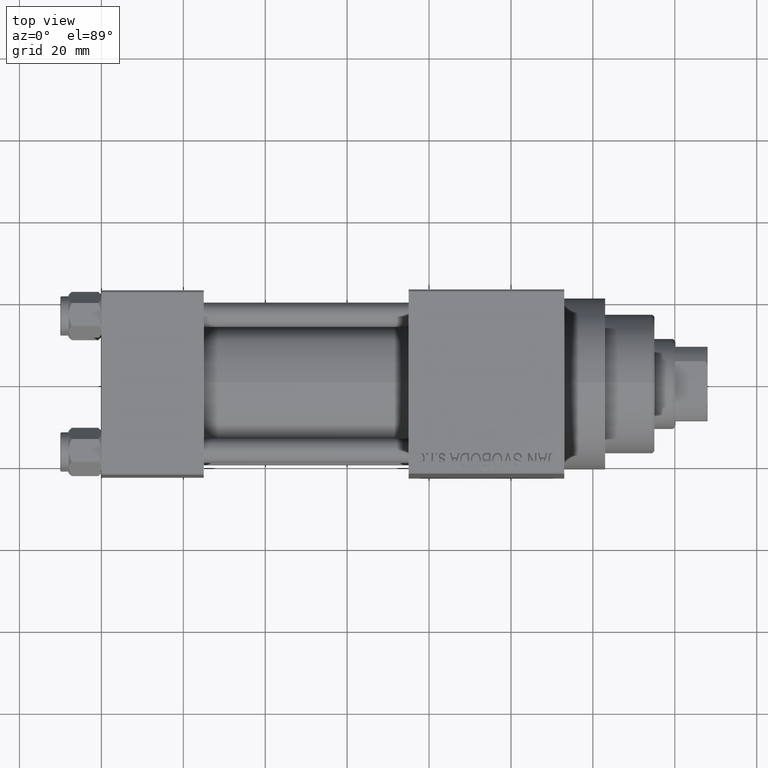
[diagram: clean part render]
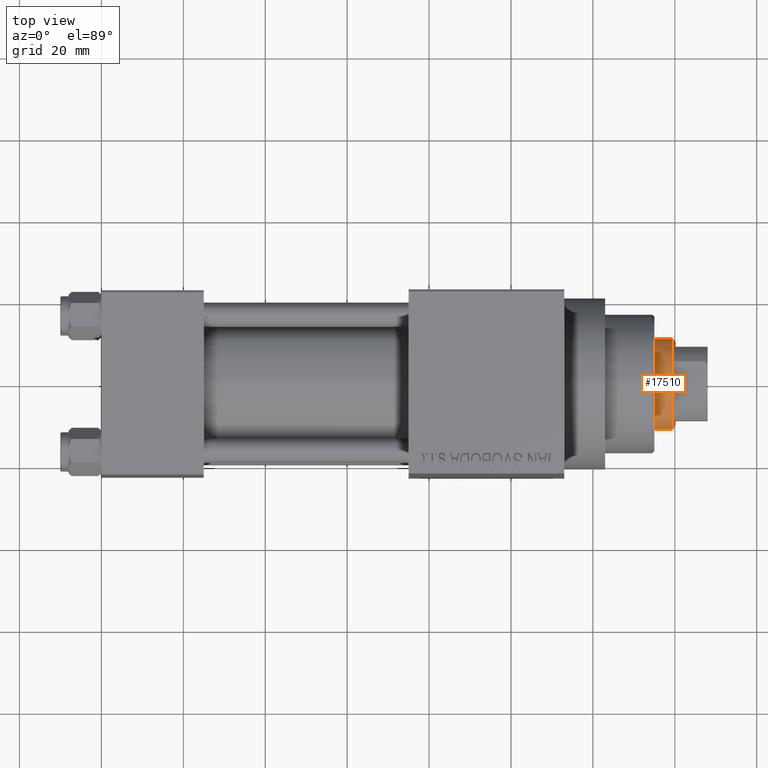
[diagram: same view with one face highlighted and labeled with its STEP entity id]
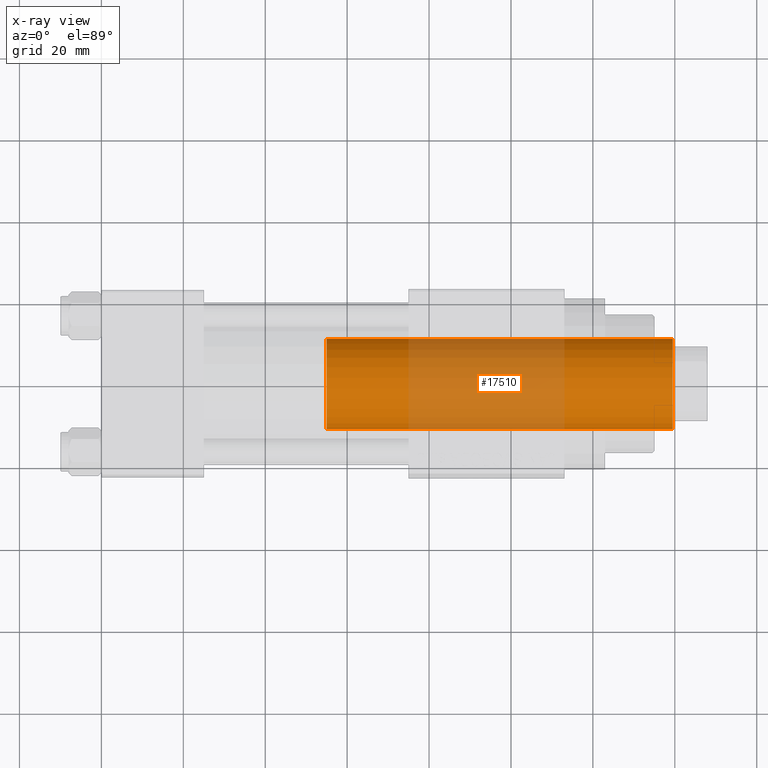
[diagram: x-ray of the same camera — body ghosted, the highlighted face saturated]
A machine part, top view. The second image highlights one B-rep face of the part: STEP entity #17510.
The next image is the same camera in x-ray: the body ghosted, the highlighted face saturated — about 45% of this face is hidden behind the body in this view.
In plain terms, the highlighted cylindrical surface (partial cylindrical patch) has radius 11 mm, axis along (-1, 0, 0).
Its self-contained STEP definition (entity closure, byte-faithful):
#221 = AXIS2_PLACEMENT_3D ( 'NONE', #34526, #13066, #21639 ) ;
#1900 = CARTESIAN_POINT ( 'NONE',  ( 0.000000000000000000, 0.000000000000000000, 114.5000000000000142 ) ) ;
#2054 = DIRECTION ( 'NONE',  ( -0.000000000000000000, -0.000000000000000000, -1.000000000000000000 ) ) ;
#3803 = EDGE_CURVE ( 'NONE', #16854, #27785, #36533, .T. ) ;
#4424 = CARTESIAN_POINT ( 'NONE',  ( 11.00000000000000000, 1.347111479062088405E-15, 30.00000000000000000 ) ) ;
#4782 = ORIENTED_EDGE ( 'NONE', *, *, #40223, .T. ) ;
#5023 = VERTEX_POINT ( 'NONE', #44740 ) ;
#5669 = LINE ( 'NONE', #23782, #30033 ) ;
#6033 = VERTEX_POINT ( 'NONE', #4424 ) ;
#7019 = CIRCLE ( 'NONE', #46620, 11.00000000000000000 ) ;
#12601 = DIRECTION ( 'NONE',  ( 1.000000000000000000, 0.000000000000000000, 0.000000000000000000 ) ) ;
#13066 = DIRECTION ( 'NONE',  ( -0.000000000000000000, -0.000000000000000000, -1.000000000000000000 ) ) ;
#14433 = EDGE_CURVE ( 'NONE', #5023, #6033, #7019, .T. ) ;
#15240 = LINE ( 'NONE', #23982, #36335 ) ;
#16854 = VERTEX_POINT ( 'NONE', #21400 ) ;
#17510 = ADVANCED_FACE ( 'NONE', ( #30949 ), #45514, .T. ) ;
#18974 = AXIS2_PLACEMENT_3D ( 'NONE', #1900, #23596, #34570 ) ;
#19017 = ORIENTED_EDGE ( 'NONE', *, *, #14433, .T. ) ;
#21400 = CARTESIAN_POINT ( 'NONE',  ( 11.00000000000000000, 1.347111479062088405E-15, 114.5000000000000142 ) ) ;
#21639 = DIRECTION ( 'NONE',  ( -1.000000000000000000, 0.000000000000000000, 0.000000000000000000 ) ) ;
#22055 = ORIENTED_EDGE ( 'NONE', *, *, #24117, .F. ) ;
#23596 = DIRECTION ( 'NONE',  ( 0.000000000000000000, 0.000000000000000000, -1.000000000000000000 ) ) ;
#23782 = CARTESIAN_POINT ( 'NONE',  ( 11.00000000000000000, 1.347111479062088405E-15, 115.0000000000000000 ) ) ;
#23982 = CARTESIAN_POINT ( 'NONE',  ( -11.00000000000000000, 0.000000000000000000, 115.0000000000000000 ) ) ;
#24117 = EDGE_CURVE ( 'NONE', #16854, #6033, #5669, .T. ) ;
#27785 = VERTEX_POINT ( 'NONE', #39040 ) ;
#29576 = EDGE_LOOP ( 'NONE', ( #22055, #34540, #4782, #19017 ) ) ;
#30033 = VECTOR ( 'NONE', #30479, 1000.000000000000000 ) ;
#30479 = DIRECTION ( 'NONE',  ( -0.000000000000000000, -0.000000000000000000, -1.000000000000000000 ) ) ;
#30715 = CARTESIAN_POINT ( 'NONE',  ( 0.000000000000000000, 0.000000000000000000, 30.00000000000000000 ) ) ;
#30949 = FACE_OUTER_BOUND ( 'NONE', #29576, .T. ) ;
#34526 = CARTESIAN_POINT ( 'NONE',  ( 0.000000000000000000, 0.000000000000000000, 115.0000000000000000 ) ) ;
#34540 = ORIENTED_EDGE ( 'NONE', *, *, #3803, .T. ) ;
#34570 = DIRECTION ( 'NONE',  ( 1.000000000000000000, 0.000000000000000000, 0.000000000000000000 ) ) ;
#36335 = VECTOR ( 'NONE', #2054, 1000.000000000000000 ) ;
#36533 = CIRCLE ( 'NONE', #18974, 11.00000000000000000 ) ;
#39040 = CARTESIAN_POINT ( 'NONE',  ( -11.00000000000000000, 0.000000000000000000, 114.5000000000000142 ) ) ;
#40223 = EDGE_CURVE ( 'NONE', #27785, #5023, #15240, .T. ) ;
#44740 = CARTESIAN_POINT ( 'NONE',  ( -11.00000000000000000, 0.000000000000000000, 30.00000000000000000 ) ) ;
#45287 = DIRECTION ( 'NONE',  ( 0.000000000000000000, 0.000000000000000000, 1.000000000000000000 ) ) ;
#45514 = CYLINDRICAL_SURFACE ( 'NONE', #221, 11.00000000000000000 ) ;
#46620 = AXIS2_PLACEMENT_3D ( 'NONE', #30715, #45287, #12601 ) ;